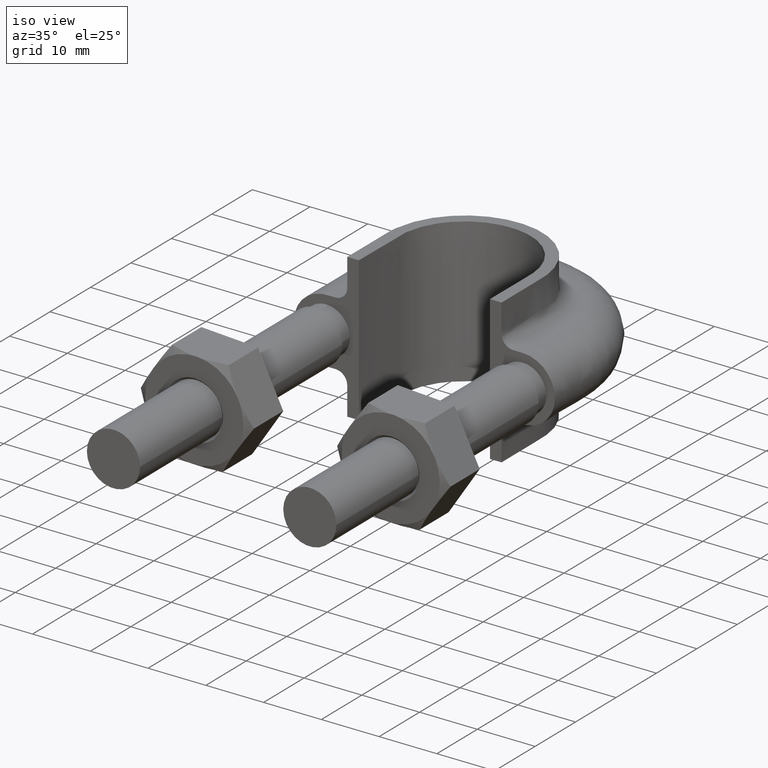
[diagram: clean part render]
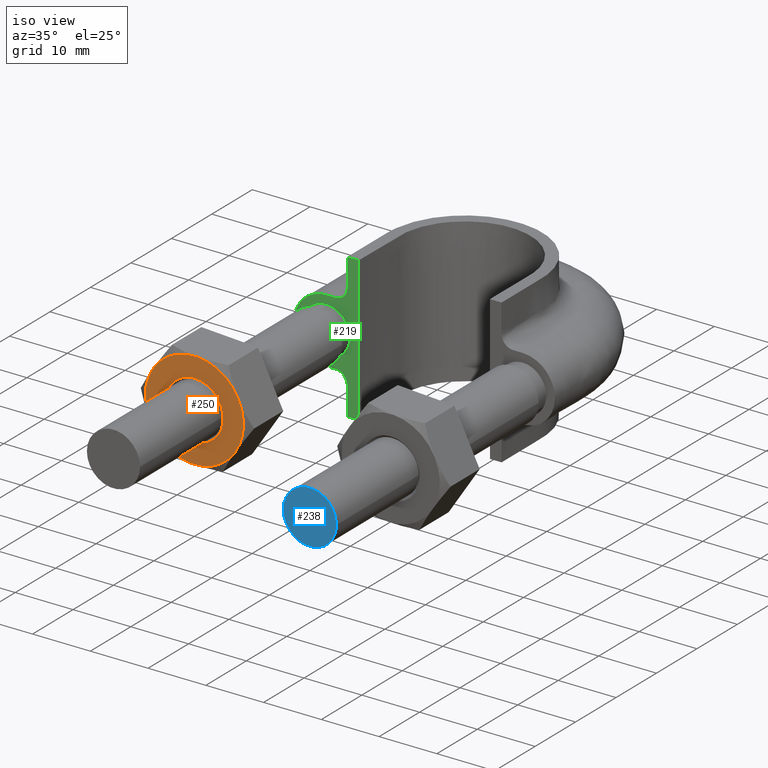
[diagram: same view with three faces highlighted in distinct colors, each labeled with its STEP entity id]
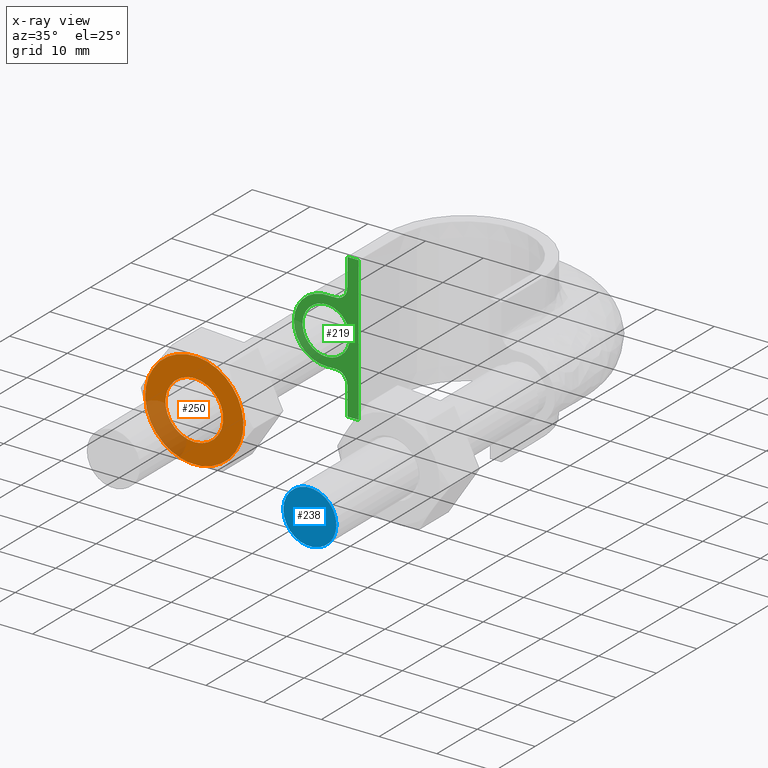
[diagram: x-ray of the same camera — body ghosted, the three highlighted faces saturated]
A machine part, iso view with three faces highlighted in distinct colors.
The next image is the same camera in x-ray (body ghosted, the three faces saturated) — at least one of them is partly hidden behind the body in this view.
Their STEP definitions:

[orange] entity #250 — the highlighted planar face has unit normal (0, 1, -0).
#250 = ADVANCED_FACE( '', ( #368, #369 ), #370, .F. );
#368 = FACE_OUTER_BOUND( '', #1447, .T. );
#369 = FACE_BOUND( '', #1448, .T. );
#370 = PLANE( '', #1449 );
#1447 = EDGE_LOOP( '', ( #1748, #1749, #1750, #1751, #1752, #1753 ) );
#1448 = EDGE_LOOP( '', ( #1754 ) );
#1449 = AXIS2_PLACEMENT_3D( '', #1755, #1756, #1757 );
#1748 = ORIENTED_EDGE( '', *, *, #2139, .F. );
#1749 = ORIENTED_EDGE( '', *, *, #2140, .F. );
#1750 = ORIENTED_EDGE( '', *, *, #2141, .F. );
#1751 = ORIENTED_EDGE( '', *, *, #2142, .F. );
#1752 = ORIENTED_EDGE( '', *, *, #2137, .F. );
#1753 = ORIENTED_EDGE( '', *, *, #2143, .F. );
#1754 = ORIENTED_EDGE( '', *, *, #2144, .T. );
#1755 = CARTESIAN_POINT( '', ( -17.0000000000000, 20.0000000000045, -6.26386149980244E-015 ) );
#1756 = DIRECTION( '', ( 2.44921270764557E-016, 1.00000000000000, -3.06151588455535E-016 ) );
#1757 = DIRECTION( '', ( -0.835412653957557, 3.72878354475236E-016, 0.549623232412523 ) );
#2137 = EDGE_CURVE( '', #2320, #2322, #2323, .T. );
#2139 = EDGE_CURVE( '', #2325, #2326, #2327, .T. );
#2140 = EDGE_CURVE( '', #2328, #2325, #2329, .T. );
#2141 = EDGE_CURVE( '', #2330, #2328, #2331, .T. );
#2142 = EDGE_CURVE( '', #2322, #2330, #2332, .T. );
#2143 = EDGE_CURVE( '', #2326, #2320, #2333, .T. );
#2144 = EDGE_CURVE( '', #2334, #2334, #2335, .T. );
#2320 = VERTEX_POINT( '', #2768 );
#2322 = VERTEX_POINT( '', #2775 );
#2323 = CIRCLE( '', #2776, 8.50000000000000 );
#2325 = VERTEX_POINT( '', #2785 );
#2326 = VERTEX_POINT( '', #2786 );
#2327 = CIRCLE( '', #2787, 8.50000000000000 );
#2328 = VERTEX_POINT( '', #2788 );
#2329 = CIRCLE( '', #2789, 8.50000000000000 );
#2330 = VERTEX_POINT( '', #2790 );
#2331 = CIRCLE( '', #2791, 8.50000000000000 );
#2332 = CIRCLE( '', #2792, 8.50000000000000 );
#2333 = CIRCLE( '', #2793, 8.50000000000000 );
#2334 = VERTEX_POINT( '', #2794 );
#2335 = CIRCLE( '', #2795, 5.00000000000000 );
#2768 = CARTESIAN_POINT( '', ( -9.89899244136075, 20.0000000000045, -4.67179747550646 ) );
#2775 = CARTESIAN_POINT( '', ( -17.4953915158050, 20.0000000000045, -8.48555167600013 ) );
#2776 = AXIS2_PLACEMENT_3D( '', #3178, #3179, #3180 );
#2785 = CARTESIAN_POINT( '', ( -16.5046084841950, 20.0000000000045, 8.48555167600012 ) );
#2786 = CARTESIAN_POINT( '', ( -9.40360092555578, 20.0000000000045, 3.81375420049367 ) );
#2787 = AXIS2_PLACEMENT_3D( '', #3181, #3182, #3183 );
#2788 = CARTESIAN_POINT( '', ( -24.1010075586392, 20.0000000000045, 4.67179747550644 ) );
#2789 = AXIS2_PLACEMENT_3D( '', #3184, #3185, #3186 );
#2790 = CARTESIAN_POINT( '', ( -24.5963990744442, 20.0000000000045, -3.81375420049368 ) );
#2791 = AXIS2_PLACEMENT_3D( '', #3187, #3188, #3189 );
#2792 = AXIS2_PLACEMENT_3D( '', #3190, #3191, #3192 );
#2793 = AXIS2_PLACEMENT_3D( '', #3193, #3194, #3195 );
#2794 = CARTESIAN_POINT( '', ( -21.1770632697878, 20.0000000000045, 2.74811616206261 ) );
#2795 = AXIS2_PLACEMENT_3D( '', #3196, #3197, #3198 );
#3178 = CARTESIAN_POINT( '', ( -17.0000000000000, 20.0000000000045, -6.26386149980244E-015 ) );
#3179 = DIRECTION( '', ( 2.44921270764557E-016, 1.00000000000000, -3.06151588455535E-016 ) );
#3180 = DIRECTION( '', ( -0.835412653957557, 3.72878354475236E-016, 0.549623232412523 ) );
#3181 = CARTESIAN_POINT( '', ( -17.0000000000000, 20.0000000000045, -6.26386149980244E-015 ) );
#3182 = DIRECTION( '', ( 2.44921270764557E-016, 1.00000000000000, -3.06151588455535E-016 ) );
#3183 = DIRECTION( '', ( -0.835412653957557, 3.72878354475236E-016, 0.549623232412523 ) );
#3184 = CARTESIAN_POINT( '', ( -17.0000000000000, 20.0000000000045, -6.26386149980244E-015 ) );
#3185 = DIRECTION( '', ( 2.44921270764557E-016, 1.00000000000000, -3.06151588455535E-016 ) );
#3186 = DIRECTION( '', ( -0.835412653957557, 3.72878354475236E-016, 0.549623232412523 ) );
#3187 = CARTESIAN_POINT( '', ( -17.0000000000000, 20.0000000000045, -6.26386149980244E-015 ) );
#3188 = DIRECTION( '', ( 2.44921270764557E-016, 1.00000000000000, -3.06151588455535E-016 ) );
#3189 = DIRECTION( '', ( -0.835412653957557, 3.72878354475236E-016, 0.549623232412523 ) );
#3190 = CARTESIAN_POINT( '', ( -17.0000000000000, 20.0000000000045, -6.26386149980244E-015 ) );
#3191 = DIRECTION( '', ( 2.44921270764557E-016, 1.00000000000000, -3.06151588455535E-016 ) );
#3192 = DIRECTION( '', ( -0.835412653957557, 3.72878354475236E-016, 0.549623232412523 ) );
#3193 = CARTESIAN_POINT( '', ( -17.0000000000000, 20.0000000000045, -6.26386149980244E-015 ) );
#3194 = DIRECTION( '', ( 2.44921270764557E-016, 1.00000000000000, -3.06151588455535E-016 ) );
#3195 = DIRECTION( '', ( -0.835412653957557, 3.72878354475236E-016, 0.549623232412523 ) );
#3196 = CARTESIAN_POINT( '', ( -17.0000000000000, 20.0000000000045, -6.26386149980244E-015 ) );
#3197 = DIRECTION( '', ( 2.44921270764557E-016, 1.00000000000000, -3.06151588455535E-016 ) );
#3198 = DIRECTION( '', ( -0.835412653957557, 3.72878354475236E-016, 0.549623232412523 ) );

[blue] entity #238 — the highlighted planar face has unit normal (-0, -1, 0).
#238 = ADVANCED_FACE( '', ( #344 ), #345, .T. );
#344 = FACE_OUTER_BOUND( '', #1423, .T. );
#345 = PLANE( '', #1424 );
#1423 = EDGE_LOOP( '', ( #1687 ) );
#1424 = AXIS2_PLACEMENT_3D( '', #1688, #1689, #1690 );
#1687 = ORIENTED_EDGE( '', *, *, #2134, .T. );
#1688 = CARTESIAN_POINT( '', ( 17.0000000000000, -4.16366160299608E-015, -1.40829730689573E-016 ) );
#1689 = DIRECTION( '', ( -2.44921270764475E-016, -1.00000000000000, 3.06151588455594E-016 ) );
#1690 = DIRECTION( '', ( 1.00000000000000, -2.44921270764475E-016, -1.09476442525376E-047 ) );
#2134 = EDGE_CURVE( '', #2315, #2315, #2316, .T. );
#2315 = VERTEX_POINT( '', #2763 );
#2316 = CIRCLE( '', #2764, 4.60000000000000 );
#2763 = CARTESIAN_POINT( '', ( 21.6000000000000, -5.29029944851267E-015, -1.40829730689573E-016 ) );
#2764 = AXIS2_PLACEMENT_3D( '', #3172, #3173, #3174 );
#3172 = CARTESIAN_POINT( '', ( 17.0000000000000, -4.16366160299608E-015, -1.40829730689573E-016 ) );
#3173 = DIRECTION( '', ( -2.44921270764475E-016, -1.00000000000000, 3.06151588455594E-016 ) );
#3174 = DIRECTION( '', ( 1.00000000000000, -2.44921270764475E-016, -1.09476442525376E-047 ) );

[green] entity #219 — the highlighted planar face has unit normal (0, 1, 0).
#219 = ADVANCED_FACE( '', ( #296, #297 ), #298, .F. );
#296 = FACE_BOUND( '', #468, .T. );
#297 = FACE_OUTER_BOUND( '', #469, .T. );
#298 = PLANE( '', #470 );
#468 = EDGE_LOOP( '', ( #1547 ) );
#469 = EDGE_LOOP( '', ( #1548, #1549, #1550, #1551 ) );
#470 = AXIS2_PLACEMENT_3D( '', #1552, #1553, #1554 );
#1547 = ORIENTED_EDGE( '', *, *, #2087, .T. );
#1548 = ORIENTED_EDGE( '', *, *, #2088, .T. );
#1549 = ORIENTED_EDGE( '', *, *, #2089, .F. );
#1550 = ORIENTED_EDGE( '', *, *, #2090, .T. );
#1551 = ORIENTED_EDGE( '', *, *, #2091, .T. );
#1552 = CARTESIAN_POINT( '', ( -25.0000000000000, 52.6000000000000, 12.5000000000000 ) );
#1553 = DIRECTION( '', ( 1.22460635382238E-016, 1.00000000000000, 0.000000000000000 ) );
#1554 = DIRECTION( '', ( -1.00000000000000, 1.22460635382238E-016, 0.000000000000000 ) );
#2087 = EDGE_CURVE( '', #2239, #2239, #2240, .T. );
#2088 = EDGE_CURVE( '', #2241, #2242, #2243, .T. );
#2089 = EDGE_CURVE( '', #2244, #2242, #2245, .T. );
#2090 = EDGE_CURVE( '', #2244, #2246, #2247, .T. );
#2091 = EDGE_CURVE( '', #2246, #2241, #2248, .T. );
#2239 = VERTEX_POINT( '', #2489 );
#2240 = B_SPLINE_CURVE_WITH_KNOTS( '', 3, ( #2490, #2491, #2492, #2493, #2494, #2495, #2496, #2497, #2498, #2499 ), .UNSPECIFIED., .T., .F., ( 4, 1, 1, 1, 1, 1, 1, 4 ), ( 0.000000000000000, 0.00365634574703307, 0.00731269149406613, 0.0109690372410992, 0.0146253829881323, 0.0182817287351653, 0.0219380744821984, 0.0255944202292315 ), .UNSPECIFIED. );
#2241 = VERTEX_POINT( '', #2500 );
#2242 = VERTEX_POINT( '', #2501 );
#2243 = LINE( '', #2502, #2503 );
#2244 = VERTEX_POINT( '', #2504 );
#2245 = LINE( '', #2505, #2506 );
#2246 = VERTEX_POINT( '', #2507 );
#2247 = B_SPLINE_CURVE_WITH_KNOTS( '', 3, ( #2508, #2509, #2510, #2511, #2512, #2513, #2514, #2515, #2516, #2517, #2518, #2519, #2520, #2521, #2522, #2523, #2524, #2525, #2526, #2527, #2528, #2529, #2530, #2531, #2532, #2533, #2534, #2535, #2536, #2537, #2538 ), .UNSPECIFIED., .F., .F., ( 4, 3, 1, 1, 1, 3, 3, 1, 1, 1, 3, 3, 1, 1, 1, 3, 4 ), ( 1.38777878078145E-017, 0.00229452256537083, 0.00458904513074165, 0.00688356769611247, 0.00917809026148329, 0.0114726128268541, 0.0137671353922249, 0.0160616579575958, 0.0183561805229666, 0.0206507030883374, 0.0229452256537082, 0.0252397482190791, 0.0275342707844499, 0.0298287933498207, 0.0321233159151915, 0.0344178384805623, 0.0367123610459332 ), .UNSPECIFIED. );
#2248 = LINE( '', #2539, #2540 );
#2489 = CARTESIAN_POINT( '', ( -12.9000000000000, 52.6000000000000, 5.40719236997566E-016 ) );
#2490 = CARTESIAN_POINT( '', ( -12.9000000000000, 52.6000000000000, 4.33680868994202E-016 ) );
#2491 = CARTESIAN_POINT( '', ( -12.9000000000000, 52.6000000000000, -1.22184926194408 ) );
#2492 = CARTESIAN_POINT( '', ( -14.0768231851220, 52.6000000000000, -3.66554778583225 ) );
#2493 = CARTESIAN_POINT( '', ( -18.0432697263483, 52.6000000000000, -4.57086332538454 ) );
#2494 = CARTESIAN_POINT( '', ( -21.2241128848102, 52.6000000000000, -2.03422555230246 ) );
#2495 = CARTESIAN_POINT( '', ( -21.2241128848102, 52.6000000000000, 2.03422555230246 ) );
#2496 = CARTESIAN_POINT( '', ( -18.0432697263483, 52.6000000000000, 4.57086332538453 ) );
#2497 = CARTESIAN_POINT( '', ( -14.0768231851220, 52.6000000000000, 3.66554778583225 ) );
#2498 = CARTESIAN_POINT( '', ( -12.9000000000000, 52.6000000000000, 1.22184926194408 ) );
#2499 = CARTESIAN_POINT( '', ( -12.9000000000000, 52.6000000000000, 4.33680868994202E-016 ) );
#2500 = CARTESIAN_POINT( '', ( -11.3600000000000, 52.6000000000000, -12.5000000000000 ) );
#2501 = CARTESIAN_POINT( '', ( -11.3600000000000, 52.6000000000000, 12.5000000000000 ) );
#2502 = CARTESIAN_POINT( '', ( -11.3600000000000, 52.6000000000000, -51.4398853821152 ) );
#2503 = VECTOR( '', #3109, 1000.00000000000 );
#2504 = CARTESIAN_POINT( '', ( -13.3600000000000, 52.6000000000000, 12.5000000000000 ) );
#2505 = CARTESIAN_POINT( '', ( -25.0000000000000, 52.6000000000000, 12.5000000000000 ) );
#2506 = VECTOR( '', #3110, 1000.00000000000 );
#2507 = CARTESIAN_POINT( '', ( -13.3600000000002, 52.6000000000000, -12.5000000000000 ) );
#2508 = CARTESIAN_POINT( '', ( -13.3600000000000, 52.5999999999999, 12.5000000000000 ) );
#2509 = CARTESIAN_POINT( '', ( -13.3600000000000, 52.5999999999998, 10.8666666666666 ) );
#2510 = CARTESIAN_POINT( '', ( -13.3600000000001, 52.6000000000000, 9.23333333333334 ) );
#2511 = CARTESIAN_POINT( '', ( -13.3599999999999, 52.5999999999996, 7.59999999999992 ) );
#2512 = CARTESIAN_POINT( '', ( -13.3600000000000, 52.6000000000000, 7.33823584172333 ) );
#2513 = CARTESIAN_POINT( '', ( -13.4641362568359, 52.5999999999998, 6.81470752516997 ) );
#2514 = CARTESIAN_POINT( '', ( -13.9089687109389, 52.5999999999999, 6.14896871093885 ) );
#2515 = CARTESIAN_POINT( '', ( -14.5747075251700, 52.5999999999998, 5.70413625683587 ) );
#2516 = CARTESIAN_POINT( '', ( -15.0982358417233, 52.5999999999999, 5.59999999999997 ) );
#2517 = CARTESIAN_POINT( '', ( -15.3600000000000, 52.5999999999999, 5.59999999999999 ) );
#2518 = CARTESIAN_POINT( '', ( -15.9066666666666, 52.5999999999998, 5.59999999999999 ) );
#2519 = CARTESIAN_POINT( '', ( -16.4533333333333, 52.5999999999998, 5.59999999999999 ) );
#2520 = CARTESIAN_POINT( '', ( -17.0000000000000, 52.5999999999999, 5.59999999999999 ) );
#2521 = CARTESIAN_POINT( '', ( -18.4627416997969, 52.5999999999998, 5.59999999999999 ) );
#2522 = CARTESIAN_POINT( '', ( -21.3882250993909, 52.5999999999999, 4.38822509939083 ) );
#2523 = CARTESIAN_POINT( '', ( -23.2058874503045, 52.5999999999998, -6.60040479667487E-015 ) );
#2524 = CARTESIAN_POINT( '', ( -21.3882250993909, 52.5999999999999, -4.38822509939087 ) );
#2525 = CARTESIAN_POINT( '', ( -18.4627416997969, 52.5999999999998, -5.60000000000000 ) );
#2526 = CARTESIAN_POINT( '', ( -17.0000000000000, 52.5999999999999, -5.60000000000001 ) );
#2527 = CARTESIAN_POINT( '', ( -16.4533333333333, 52.5999999999999, -5.60000000000001 ) );
#2528 = CARTESIAN_POINT( '', ( -15.9066666666667, 52.5999999999998, -5.60000000000000 ) );
#2529 = CARTESIAN_POINT( '', ( -15.3600000000000, 52.5999999999998, -5.60000000000001 ) );
#2530 = CARTESIAN_POINT( '', ( -15.0982358417233, 52.5999999999998, -5.60000000000000 ) );
#2531 = CARTESIAN_POINT( '', ( -14.5747075251700, 52.5999999999998, -5.70413625683591 ) );
#2532 = CARTESIAN_POINT( '', ( -13.9089687109389, 52.5999999999999, -6.14896871093889 ) );
#2533 = CARTESIAN_POINT( '', ( -13.4641362568359, 52.5999999999998, -6.81470752517002 ) );
#2534 = CARTESIAN_POINT( '', ( -13.3600000000000, 52.5999999999998, -7.33823584172334 ) );
#2535 = CARTESIAN_POINT( '', ( -13.3600000000000, 52.5999999999999, -7.60000000000001 ) );
#2536 = CARTESIAN_POINT( '', ( -13.3600000000000, 52.6000000000000, -9.23333333333339 ) );
#2537 = CARTESIAN_POINT( '', ( -13.3599999999998, 52.5999999999995, -10.8666666666666 ) );
#2538 = CARTESIAN_POINT( '', ( -13.3600000000001, 52.6000000000003, -12.5000000000001 ) );
#2539 = CARTESIAN_POINT( '', ( -25.0000000000000, 52.6000000000000, -12.5000000000000 ) );
#2540 = VECTOR( '', #3111, 1000.00000000000 );
#3109 = DIRECTION( '', ( 0.000000000000000, 0.000000000000000, 1.00000000000000 ) );
#3110 = DIRECTION( '', ( 1.00000000000000, -1.22460635382238E-016, 0.000000000000000 ) );
#3111 = DIRECTION( '', ( 1.00000000000000, -1.22460635382238E-016, 0.000000000000000 ) );